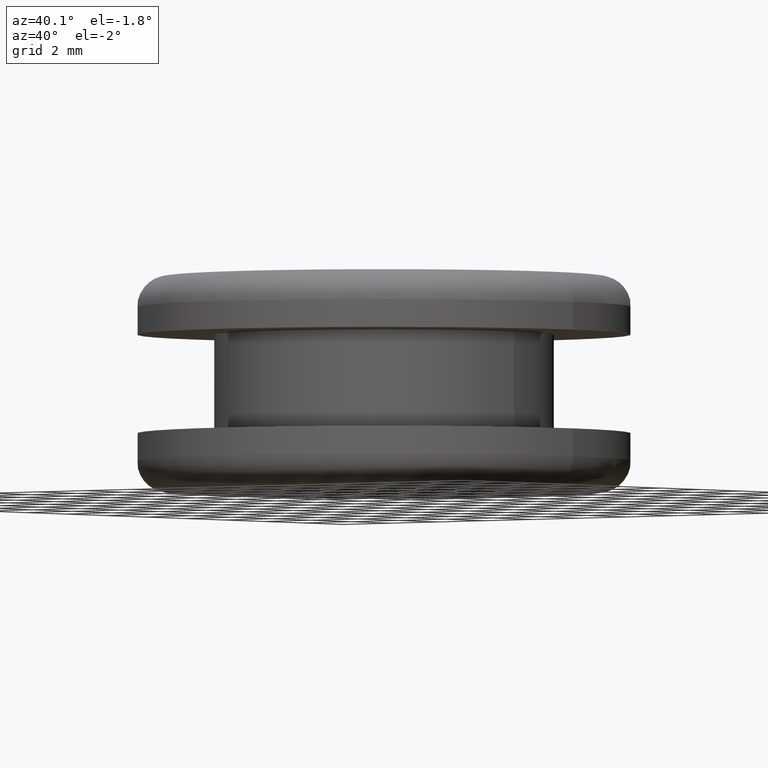
[diagram: clean part render]
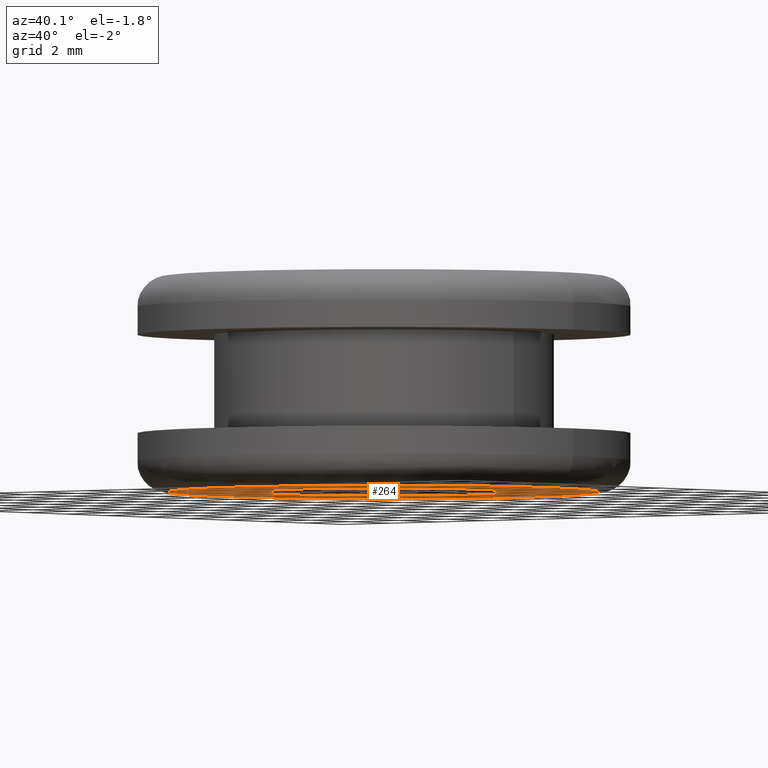
[diagram: same view with one face highlighted and labeled with its STEP entity id]
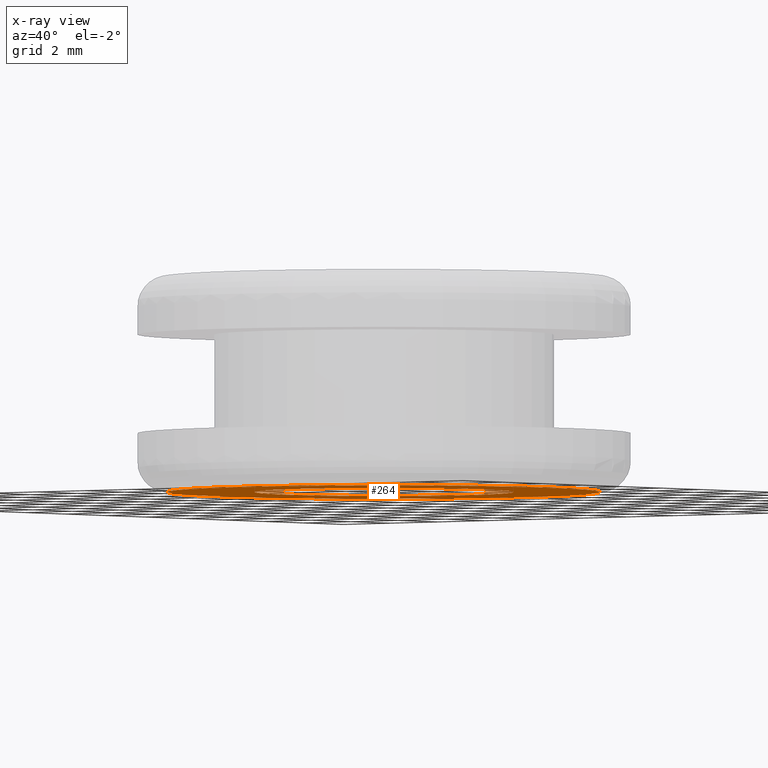
[diagram: x-ray of the same camera — body ghosted, the highlighted face saturated]
A machine part, auxiliary view. The second image highlights one B-rep face of the part: STEP entity #264.
The next image is the same camera in x-ray: the body ghosted, the highlighted face saturated — about 0% of this face is hidden behind the body in this view.
In plain terms, the highlighted planar face has unit normal (0, 0, 1).
Its self-contained STEP definition (entity closure, byte-faithful):
#9 = AXIS2_PLACEMENT_3D ( 'NONE', #443, #225, #255 ) ;
#15 = DIRECTION ( 'NONE',  ( 0.0000000000000000000, 0.0000000000000000000, -1.000000000000000000 ) ) ;
#16 = AXIS2_PLACEMENT_3D ( 'NONE', #226, #290, #221 ) ;
#24 = VERTEX_POINT ( 'NONE', #171 ) ;
#30 = EDGE_CURVE ( 'NONE', #363, #289, #156, .T. ) ;
#46 = ORIENTED_EDGE ( 'NONE', *, *, #30, .F. ) ;
#51 = DIRECTION ( 'NONE',  ( -1.000000000000000000, 0.0000000000000000000, 0.0000000000000000000 ) ) ;
#54 = CARTESIAN_POINT ( 'NONE',  ( 99.20493729657970100, 0.0000000000000000000, 140.3726952467922000 ) ) ;
#66 = VERTEX_POINT ( 'NONE', #353 ) ;
#96 = CIRCLE ( 'NONE', #9, 6.999999999875009300 ) ;
#102 = ORIENTED_EDGE ( 'NONE', *, *, #367, .F. ) ;
#119 = EDGE_CURVE ( 'NONE', #24, #66, #286, .T. ) ;
#149 = CARTESIAN_POINT ( 'NONE',  ( 103.4049372964547000, 5.143516556265810400E-016, 140.3726952467922000 ) ) ;
#156 = CIRCLE ( 'NONE', #16, 4.199999999875012200 ) ;
#159 = CARTESIAN_POINT ( 'NONE',  ( 99.20493729657970100, 0.0000000000000000000, 140.3726952467922000 ) ) ;
#164 = CARTESIAN_POINT ( 'NONE',  ( 106.2049372964546000, 0.0000000000000000000, 140.3726952467922000 ) ) ;
#171 = CARTESIAN_POINT ( 'NONE',  ( 92.20493729670468500, 0.0000000000000000000, 140.3726952467922000 ) ) ;
#183 = DIRECTION ( 'NONE',  ( 0.0000000000000000000, 0.0000000000000000000, 1.000000000000000000 ) ) ;
#186 = AXIS2_PLACEMENT_3D ( 'NONE', #164, #183, #257 ) ;
#198 = EDGE_CURVE ( 'NONE', #66, #24, #96, .T. ) ;
#221 = DIRECTION ( 'NONE',  ( -1.000000000000000000, 0.0000000000000000000, 0.0000000000000000000 ) ) ;
#225 = DIRECTION ( 'NONE',  ( 0.0000000000000000000, 0.0000000000000000000, -1.000000000000000000 ) ) ;
#226 = CARTESIAN_POINT ( 'NONE',  ( 99.20493729657970100, 0.0000000000000000000, 140.3726952467922000 ) ) ;
#233 = CARTESIAN_POINT ( 'NONE',  ( 95.00493729670468200, 0.0000000000000000000, 140.3726952467922000 ) ) ;
#253 = ORIENTED_EDGE ( 'NONE', *, *, #119, .T. ) ;
#255 = DIRECTION ( 'NONE',  ( -1.000000000000000000, 0.0000000000000000000, 0.0000000000000000000 ) ) ;
#257 = DIRECTION ( 'NONE',  ( 1.000000000000000000, 0.0000000000000000000, 0.0000000000000000000 ) ) ;
#260 = CIRCLE ( 'NONE', #424, 4.199999999875012200 ) ;
#264 = ADVANCED_FACE ( 'NONE', ( #338, #404 ), #383, .F. ) ;
#286 = CIRCLE ( 'NONE', #302, 6.999999999875009300 ) ;
#289 = VERTEX_POINT ( 'NONE', #149 ) ;
#290 = DIRECTION ( 'NONE',  ( 0.0000000000000000000, 0.0000000000000000000, -1.000000000000000000 ) ) ;
#302 = AXIS2_PLACEMENT_3D ( 'NONE', #54, #15, #51 ) ;
#338 = FACE_BOUND ( 'NONE', #425, .T. ) ;
#348 = DIRECTION ( 'NONE',  ( 0.0000000000000000000, 0.0000000000000000000, -1.000000000000000000 ) ) ;
#353 = CARTESIAN_POINT ( 'NONE',  ( 106.2049372964547000, 9.184850993452081300E-016, 140.3726952467922000 ) ) ;
#363 = VERTEX_POINT ( 'NONE', #233 ) ;
#367 = EDGE_CURVE ( 'NONE', #289, #363, #260, .T. ) ;
#383 = PLANE ( 'NONE',  #186 ) ;
#404 = FACE_OUTER_BOUND ( 'NONE', #420, .T. ) ;
#420 = EDGE_LOOP ( 'NONE', ( #253, #446 ) ) ;
#424 = AXIS2_PLACEMENT_3D ( 'NONE', #159, #348, #468 ) ;
#425 = EDGE_LOOP ( 'NONE', ( #46, #102 ) ) ;
#443 = CARTESIAN_POINT ( 'NONE',  ( 99.20493729657970100, 0.0000000000000000000, 140.3726952467922000 ) ) ;
#446 = ORIENTED_EDGE ( 'NONE', *, *, #198, .T. ) ;
#468 = DIRECTION ( 'NONE',  ( -1.000000000000000000, 0.0000000000000000000, 0.0000000000000000000 ) ) ;